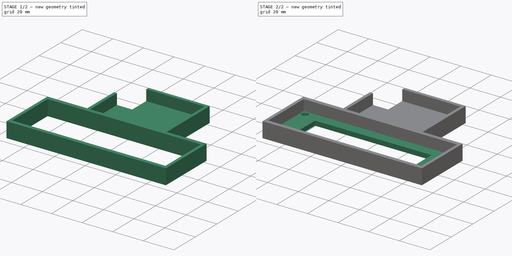
[diagram: build sequence overview — one tinted view per stage of 2, left to right]
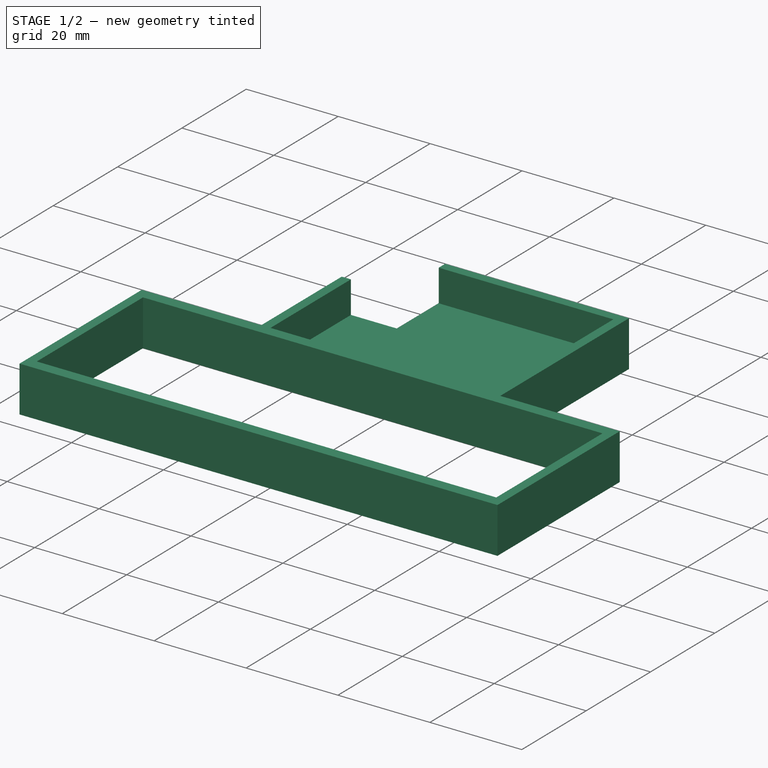
[diagram: stage 1 of 2 — iso view after this stage's code; geometry added in this stage tinted green]
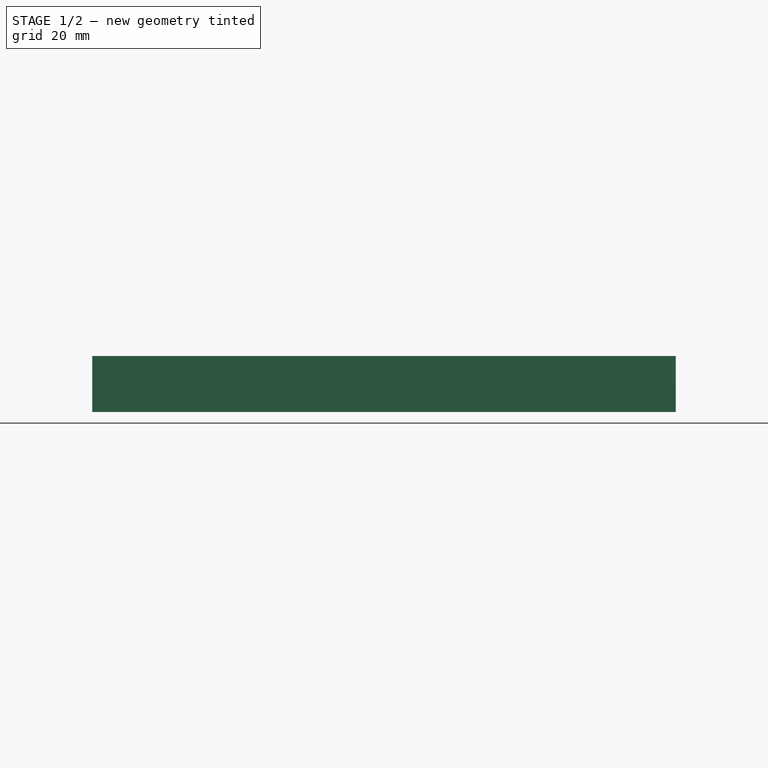
[diagram: stage 1 of 2 — front view after this stage's code; geometry added in this stage tinted green]
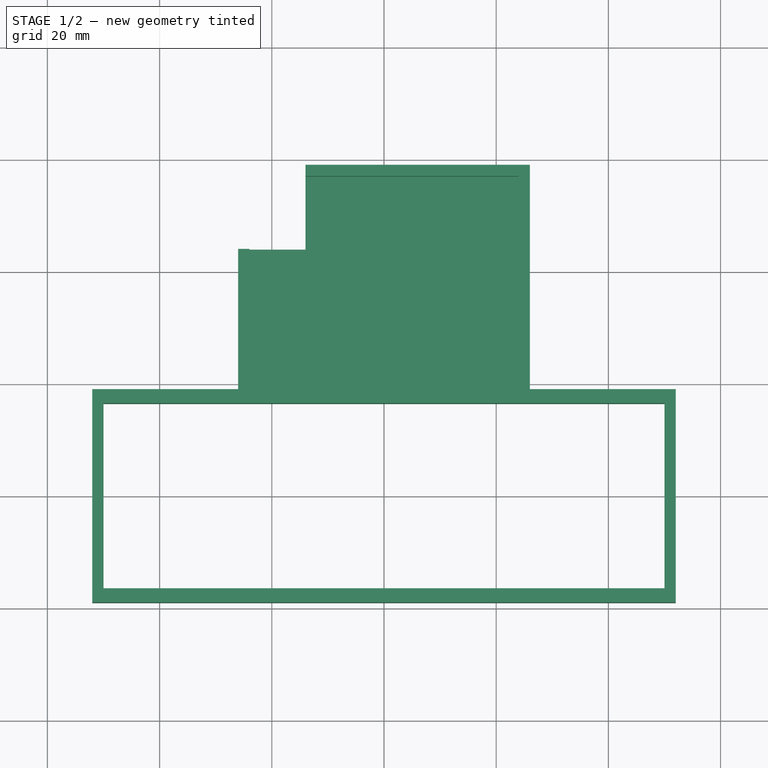
[diagram: stage 1 of 2 — top view after this stage's code; geometry added in this stage tinted green]
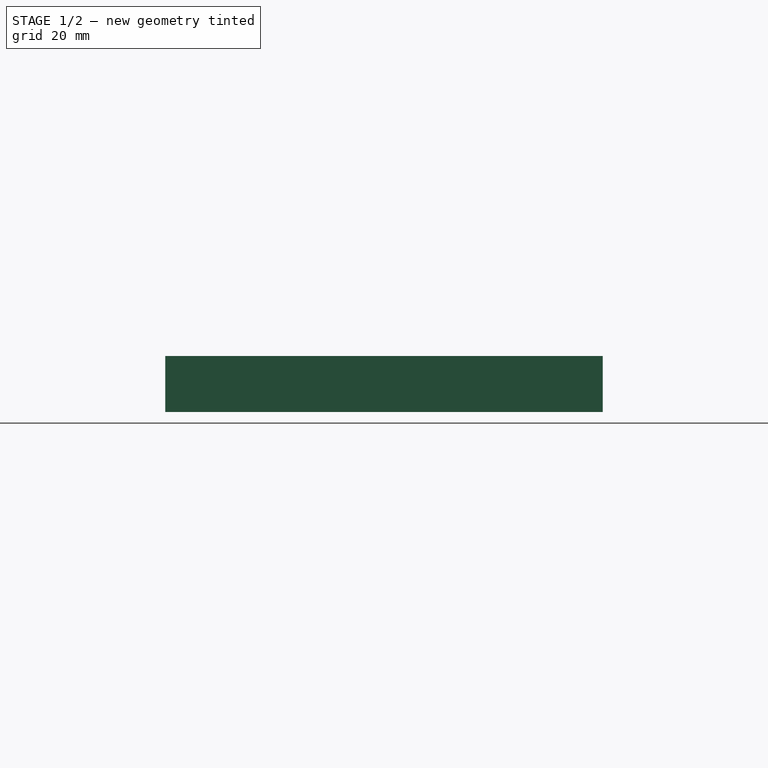
[diagram: stage 1 of 2 — right view after this stage's code; geometry added in this stage tinted green]
FCSTD DOCUMENT  (FreeCAD 0.19R24291 (Git))
Label: tt-beam-case
License: All rights reserved
LicenseURL: http://en.wikipedia.org/wiki/All_rights_reserved
objects: Sketcher::SketchObject×3, PartDesign::Pad×3, PartDesign::Body×3, Spreadsheet::Sheet×1
note: 12 computed .brp shape members not serialized (recipe doc carries the construction recipe); baked Part::Feature solids carry a one-line shape summary decoded from their .brp

FEATURE [PartDesign::Body] Body  label="BoardHolder"
  Group = -> [Sketch,Pad]
  Origin = -> Origin
  Tip = -> Pad
FEATURE [Sketcher::SketchObject] Sketch001
  FullyConstrained = true
  MapMode = 5
  Support = -> [XY_Plane001]
  expr: Constraints[6] = <<Params>>.PMSHeight - <<Params>>.PMSCrevasseY
  expr: .Constraints.PMSOffset = <<Params>>.PMSOffset
  expr: .Constraints.PMSCrevasseX = <<Params>>.PMSCrevasseX
  expr: .Constraints.PMSCrevasseY = <<Params>>.PMSCrevasseY
  expr: Constraints[5] = <<Params>>.PMSWidth - <<Params>>.PMSCrevasseX
  sketch-geometry (6):
    g0: LineSegment StartX=-14 StartY=57 StartZ=0 EndX=24 EndY=57 EndZ=0
    g1: LineSegment StartX=24 StartY=57 StartZ=0 EndX=24 EndY=19 EndZ=0
    g2: LineSegment StartX=24 StartY=19 StartZ=0 EndX=-24 EndY=19 EndZ=0
    g3: LineSegment StartX=-24 StartY=19 StartZ=0 EndX=-24 EndY=44 EndZ=0
    g4: LineSegment StartX=-14 StartY=57 StartZ=0 EndX=-14 EndY=44 EndZ=0
    g5: LineSegment StartX=-24 StartY=44 StartZ=0 EndX=-14 EndY=44 EndZ=0
  constraints (17):
    c: Coincident(g0,g1)
    c: Coincident(g1,g2)
    c: Coincident(g2,g3)
    c: Vertical(g1)
    c: Vertical(g3)
    c: DistanceX(g0,g0) = 38
    c: DistanceY(g3,g3) = 25
    c: Distance(g-1,g2) = 19  'PMSOffset'
    c: Coincident(g4,g0)
    c: Vertical(g4)
    c: Coincident(g5,g3)
    c: Coincident(g5,g4)
    c: Horizontal(g5)
    c: DistanceY(g4,g4) = 13  'PMSCrevasseY'
    c: DistanceX(g5,g5) = 10  'PMSCrevasseX'
    c: Symmetric(g1,g2,g-2)
    c: Horizontal(g0)
FEATURE [PartDesign::Pad] Pad001
  Direction = (1,1,1)
  Length = 3
  Length2 = 100
  Profile = -> Sketch001
  Type = 0
FEATURE [PartDesign::Body] Body001  label="PMSHolder"
  Group = -> [Sketch001,Pad001]
  Origin = -> Origin001
  Tip = -> Pad001
FEATURE [Sketcher::SketchObject] Sketch002
  FullyConstrained = true
  MapMode = 5
  Support = -> [XY_Plane002]
  expr: Constraints[47] = <<Params>>.PMSHeight + <<Params>>.CaseWith
  expr: Constraints[46] = <<Params>>.PMSWidth - <<Params>>.PMSCrevasseX + <<Params>>.CaseWith
  expr: Constraints[45] = <<Params>>.CaseWith
  expr: .Constraints.PMSCaseWidth = <<Params>>.PMSWidth - <<Params>>.PMSCrevasseX
  expr: .Constraints.BoardHeight = <<Params>>.BoardHeight
  expr: Constraints[48] = <<Params>>.PMSWidth
  expr: Constraints[44] = <<Params>>.CaseWith
  expr: .Constraints.PMSHeight = <<Params>>.PMSHeight - <<Params>>.PMSCrevasseY
  expr: .Constraints.PMSOffset = <<Params>>.PMSOffset
  expr: .Constraints.BoardWidth = <<Params>>.BoardWidth
  sketch-geometry (18):
    g0: LineSegment StartX=-14 StartY=59 StartZ=0 EndX=26 EndY=59 EndZ=0
    g1: LineSegment StartX=26 StartY=59 StartZ=0 EndX=26 EndY=19 EndZ=0
    g2: LineSegment StartX=-26 StartY=19 StartZ=0 EndX=-26 EndY=44 EndZ=0
    g3: LineSegment StartX=-26 StartY=19 StartZ=0 EndX=-52 EndY=19 EndZ=0
    g4: LineSegment StartX=-52 StartY=19 StartZ=0 EndX=-52 EndY=-19 EndZ=0
    g5: LineSegment StartX=-52 StartY=-19 StartZ=0 EndX=52 EndY=-19 EndZ=0
    g6: LineSegment StartX=52 StartY=-19 StartZ=0 EndX=52 EndY=19 EndZ=0
    g7: LineSegment StartX=52 StartY=19 StartZ=0 EndX=26 EndY=19 EndZ=0
    g8: LineSegment StartX=-50 StartY=16.5 StartZ=0 EndX=50 EndY=16.5 EndZ=0
    g9: LineSegment StartX=50 StartY=16.5 StartZ=0 EndX=50 EndY=-16.5 EndZ=0
    g10: LineSegment StartX=50 StartY=-16.5 StartZ=0 EndX=-50 EndY=-16.5 EndZ=0
    g11: LineSegment StartX=-50 StartY=-16.5 StartZ=0 EndX=-50 EndY=16.5 EndZ=0
    g12: LineSegment StartX=-14 StartY=57 StartZ=0 EndX=24 EndY=57 EndZ=0
    g13: LineSegment StartX=24 StartY=57 StartZ=0 EndX=24 EndY=19 EndZ=0
    g14: LineSegment StartX=24 StartY=19 StartZ=0 EndX=-24 EndY=19 EndZ=0
    g15: LineSegment StartX=-24 StartY=19 StartZ=0 EndX=-24 EndY=44 EndZ=0
    g16: LineSegment StartX=-26 StartY=44 StartZ=0 EndX=-24 EndY=44 EndZ=0
    g17: LineSegment StartX=-14 StartY=59 StartZ=0 EndX=-14 EndY=57 EndZ=0
  constraints (49):
    c: Coincident(g0,g1)
    c: Vertical(g1)
    c: Vertical(g2)
    c: Coincident(g3,g2)
    c: Horizontal(g3)
    c: Coincident(g4,g3)
    c: Coincident(g5,g4)
    c: Coincident(g6,g5)
    c: Vertical(g6)
    c: Coincident(g7,g6)
    c: Coincident(g7,g1)
    c: DistanceX(g5,g5) = 104
    c: Horizontal(g7)
    c: Symmetric(g4,g5,g-2)
    c: Symmetric(g3,g4,g-1)
    c: DistanceY(g4,g4) = 38
    c: DistanceY(g6,g6) = 38
    c: Coincident(g8,g9)
    c: Coincident(g9,g10)
    c: Coincident(g10,g11)
    c: Coincident(g11,g8)
    c: Horizontal(g10)
    c: Vertical(g11)
    c: DistanceY(g11,g11) = 33  'BoardHeight'
    c: Symmetric(g8,g8,g-2)
    c: Symmetric(g8,g9,g-1)
    c: DistanceX(g8,g8) = 100  'BoardWidth'
    c: Coincident(g12,g13)
    c: Coincident(g13,g14)
    c: Coincident(g14,g15)
    c: Vertical(g13)
    c: Vertical(g15)
    c: DistanceX(g12,g12) = 38  'PMSCaseWidth'
    c: DistanceY(g15,g15) = 25  'PMSHeight'
    c: Distance(g-1,g14) = 19  'PMSOffset'
    c: Symmetric(g14,g13,g-2)
    c: Horizontal(g12)
    c: Coincident(g16,g2)
    c: Coincident(g16,g15)
    c: Horizontal(g16)
    c: Horizontal(g0)
    c: Coincident(g17,g0)
    c: Coincident(g17,g12)
    c: Vertical(g17)
    c: DistanceY(g17,g17) = 2
    c: DistanceX(g16,g16) = 2
    c: DistanceX(g0,g0) = 40
    c: DistanceY(g1,g1) = 40
    c: DistanceX(g14,g14) = 48
FEATURE [PartDesign::Pad] Pad002
  Direction = (1,1,1)
  Length = 10
  Length2 = 100
  Profile = -> Sketch002
  Type = 0
FEATURE [PartDesign::Body] Body002  label="CaseWalls"
  Group = -> [Sketch002,Pad002]
  Origin = -> Origin002
  Tip = -> Pad002
FEATURE [Spreadsheet::Sheet] Spreadsheet  label="Params"
  cells = A1=Board Model; B1=TTGO T-Beam V1.1; A2=BoardHeight; B2(BoardHeight)==33mm; A3=BoardWidth; B3(BoardWidth)==100mm; A4=BoardScrewHolesRadius; B4(BoardScrewHolesRadius)==2mm; A5=BatteryHoleHeight; B5(BatteryHoleHeight)==20mm; A6=BatteryHoleWidth; B6(BatteryHoleWidth)==76mm; A7=PMSHeight; B7(PMSHeight)==38mm; A8=PMSWidth; B8(PMSWidth)==48mm; A9=PMSOffset; B9(PMSOffset)==19mm; A10=PMSCrevasseX; B10(PMSCrevasseX)==10mm; A11=PMSCrevasseY; B11(PMSCrevasseY)==13mm; A12=CaseWith; B12(CaseWith)==2mm
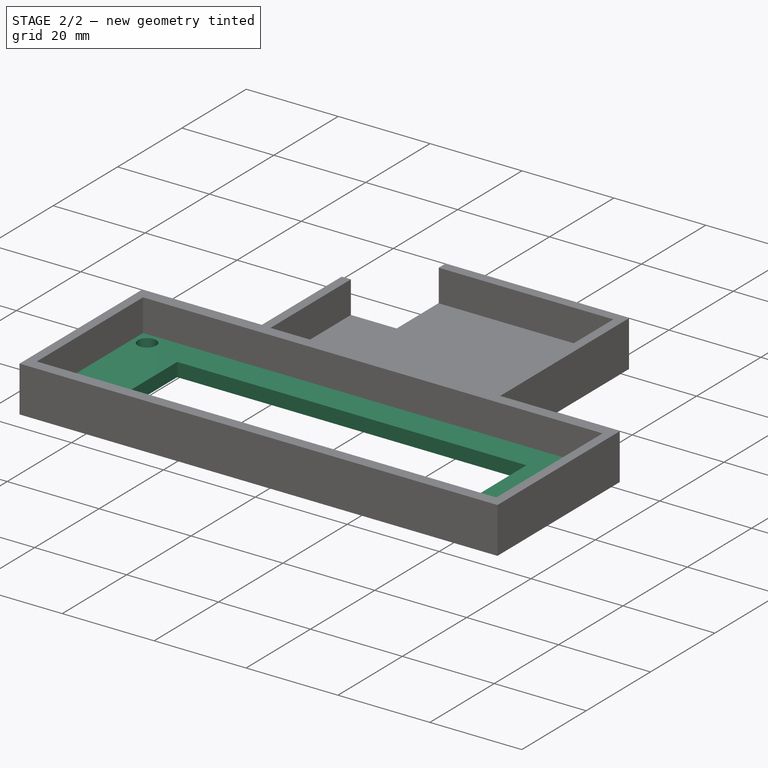
[diagram: stage 2 of 2 — iso view after this stage's code; geometry added in this stage tinted green]
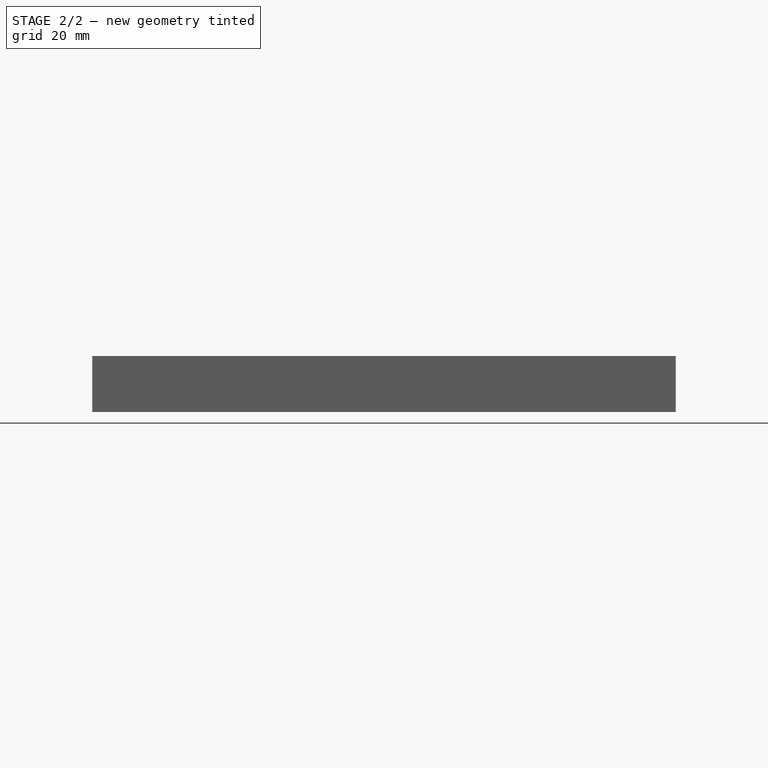
[diagram: stage 2 of 2 — front view after this stage's code; geometry added in this stage tinted green]
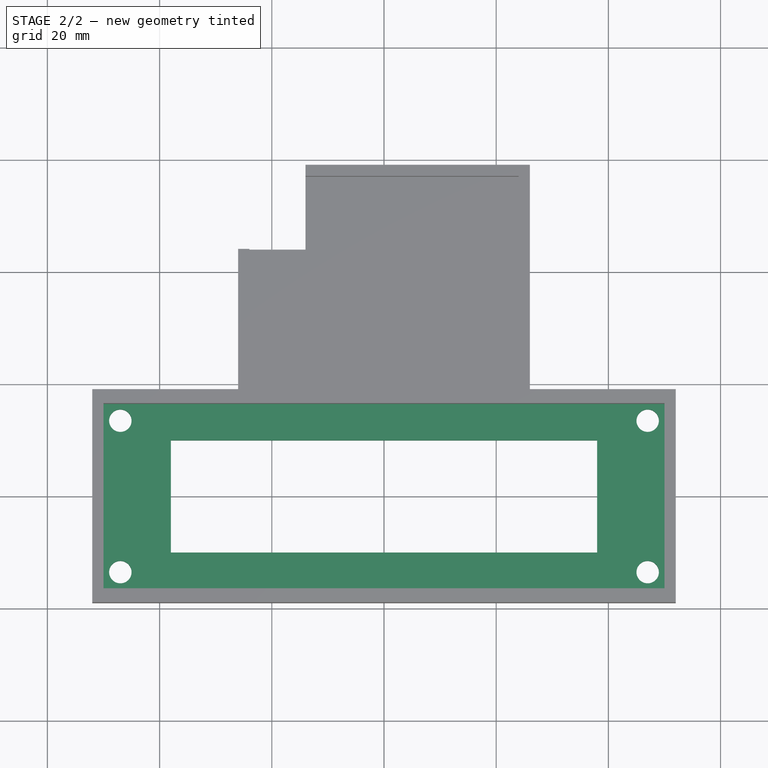
[diagram: stage 2 of 2 — top view after this stage's code; geometry added in this stage tinted green]
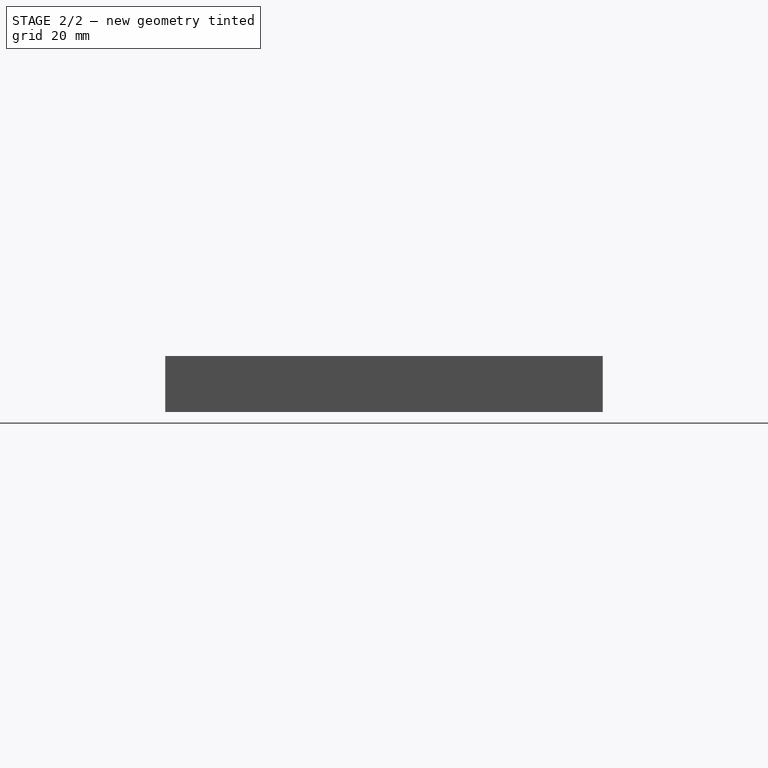
[diagram: stage 2 of 2 — right view after this stage's code; geometry added in this stage tinted green]
FEATURE [Sketcher::SketchObject] Sketch
  FullyConstrained = true
  MapMode = 5
  Support = -> [XY_Plane]
  expr: .Constraints.BoardWidth = <<Params>>.BoardWidth
  expr: .Constraints.BoardScrewHolesRadius = <<Params>>.BoardScrewHolesRadius
  expr: .Constraints.BatteryHoleWidth = <<Params>>.BatteryHoleWidth
  expr: .Constraints.BoardHeight = <<Params>>.BoardHeight
  expr: .Constraints.BatteryHoleHeight = <<Params>>.BatteryHoleHeight
  sketch-geometry (12):
    g0: LineSegment StartX=-50 StartY=16.5 StartZ=0 EndX=50 EndY=16.5 EndZ=0
    g1: LineSegment StartX=50 StartY=16.5 StartZ=0 EndX=50 EndY=-16.5 EndZ=0
    g2: LineSegment StartX=50 StartY=-16.5 StartZ=0 EndX=-50 EndY=-16.5 EndZ=0
    g3: LineSegment StartX=-50 StartY=-16.5 StartZ=0 EndX=-50 EndY=16.5 EndZ=0
    g4: Circle CenterX=-47 CenterY=13.5 CenterZ=0 NormalX=0 NormalY=0 NormalZ=1 AngleXU=0 Radius=2
    g5: Circle CenterX=-47 CenterY=-13.5 CenterZ=0 NormalX=0 NormalY=0 NormalZ=1 AngleXU=0 Radius=2
    g6: Circle CenterX=47 CenterY=13.5 CenterZ=0 NormalX=0 NormalY=0 NormalZ=1 AngleXU=0 Radius=2
    g7: Circle CenterX=47 CenterY=-13.5 CenterZ=0 NormalX=0 NormalY=0 NormalZ=1 AngleXU=0 Radius=2
    g8: LineSegment StartX=-38 StartY=10 StartZ=0 EndX=38 EndY=10 EndZ=0
    g9: LineSegment StartX=38 StartY=10 StartZ=0 EndX=38 EndY=-10 EndZ=0
    g10: LineSegment StartX=38 StartY=-10 StartZ=0 EndX=-38 EndY=-10 EndZ=0
    g11: LineSegment StartX=-38 StartY=-10 StartZ=0 EndX=-38 EndY=10 EndZ=0
  constraints (29):
    c: Coincident(g0,g1)
    c: Coincident(g1,g2)
    c: Coincident(g2,g3)
    c: Coincident(g3,g0)
    c: Horizontal(g2)
    c: Vertical(g1)
    c: DistanceX(g0,g0) = 100  'BoardWidth'
    c: DistanceY(g3,g3) = 33  'BoardHeight'
    c: Symmetric(g0,g0,g-2)
    c: Symmetric(g2,g0,g-1)
    c: Radius(g4) = 2  'BoardScrewHolesRadius'
    c: Equal(g4,g5)
    c: Equal(g4,g6)
    c: Equal(g4,g7)
    c: DistanceY(g7,g6) = 27
    c: Symmetric(g6,g7,g-1)
    c: DistanceX(g5,g7) = 94
    c: Symmetric(g5,g4,g-1)
    c: Symmetric(g4,g6,g-2)
    c: Coincident(g8,g9)
    c: Coincident(g9,g10)
    c: Coincident(g10,g11)
    c: Coincident(g11,g8)
    c: Horizontal(g10)
    c: Vertical(g9)
    c: DistanceX(g8,g8) = 76  'BatteryHoleWidth'
    c: DistanceY(g11,g11) = 20  'BatteryHoleHeight'
    c: Symmetric(g8,g8,g-2)
    c: Symmetric(g8,g10,g-1)
FEATURE [PartDesign::Pad] Pad
  Direction = (1,1,1)
  Length = 3
  Length2 = 100
  Profile = -> Sketch
  Type = 0
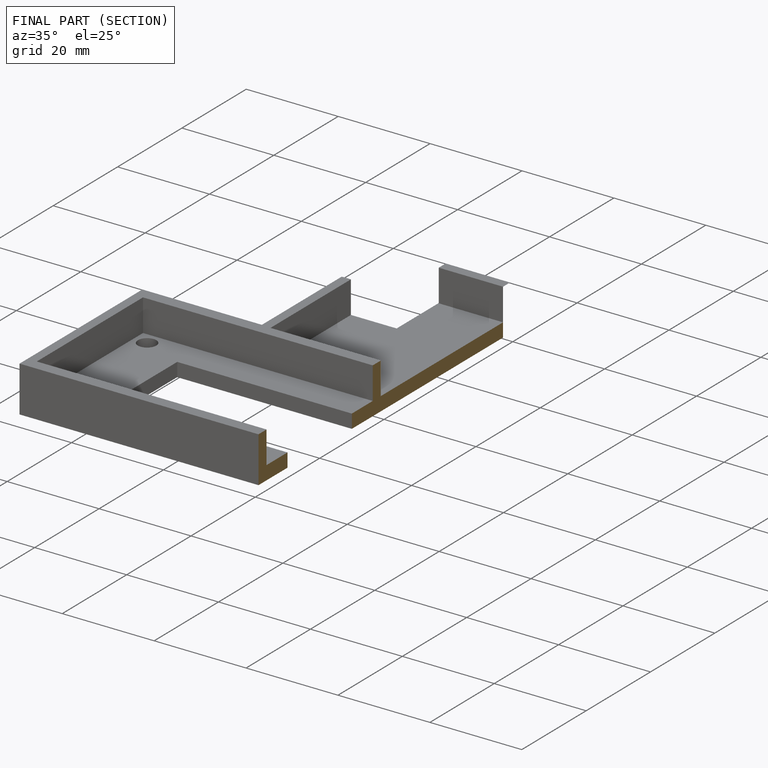
[diagram: finished part — half-section view (interior)]
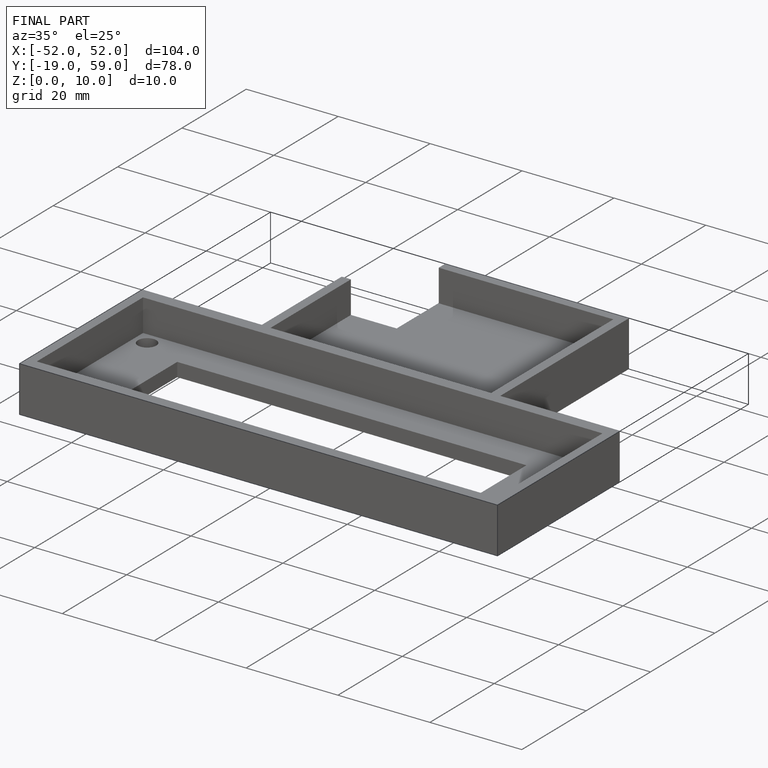
[diagram: finished part — iso view with bounding-box wireframe]
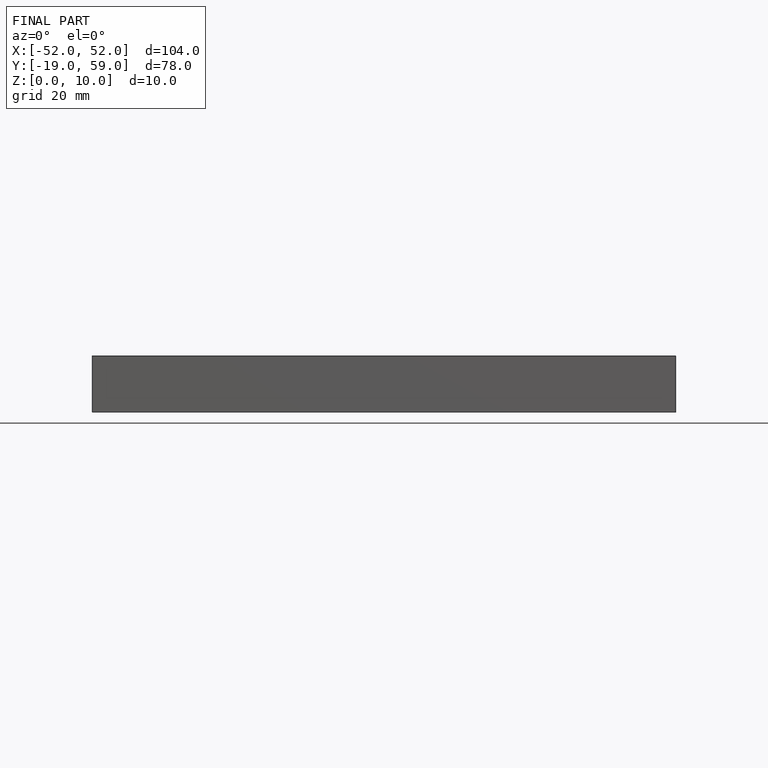
[diagram: finished part — front view with bounding-box wireframe]
